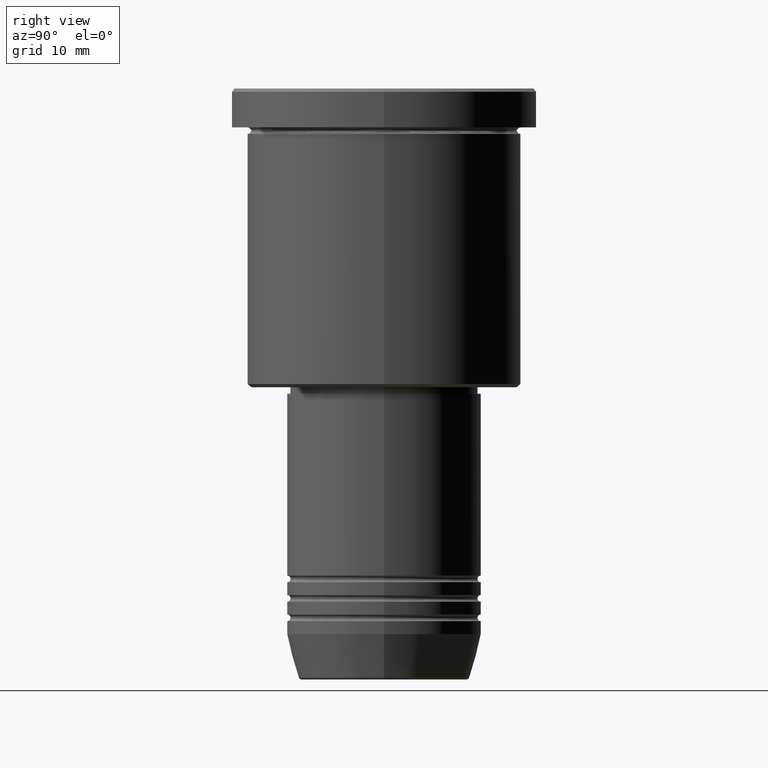
[diagram: clean part render]
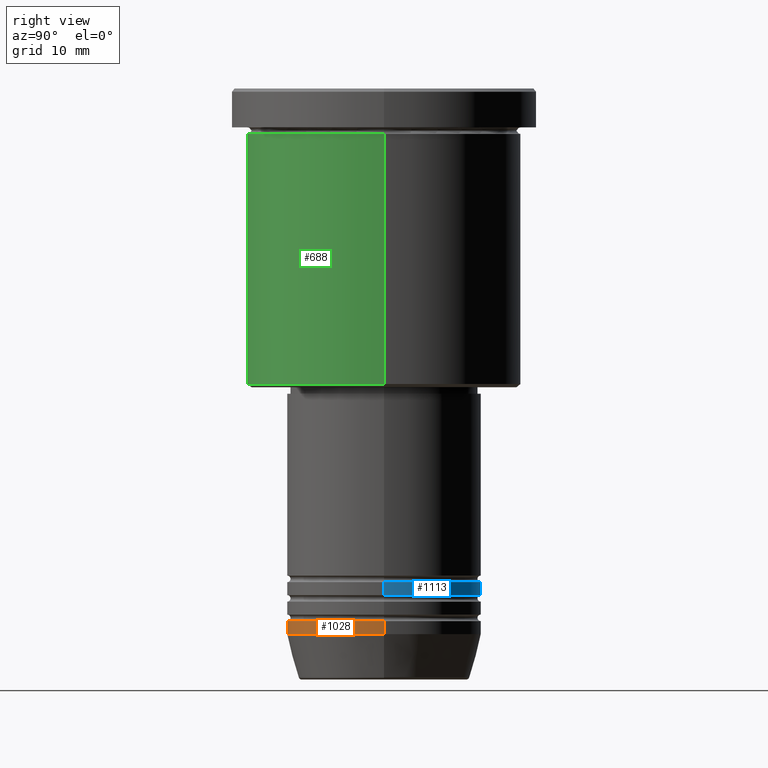
[diagram: same view with three faces highlighted in distinct colors, each labeled with its STEP entity id]
A machine part, right view with three faces highlighted in distinct colors.
Their STEP definitions:

[orange] entity #1028 — the highlighted cylindrical surface (partial cylindrical patch) has radius 15 mm, axis along (-0, -0, 1).
#8 = CARTESIAN_POINT ( 'NONE',  ( 0.000000000000000000, 0.000000000000000000, -83.99999999999998579 ) ) ;
#55 = CARTESIAN_POINT ( 'NONE',  ( -15.00000000000000000, 1.836970198721029589E-15, -83.99999999999998579 ) ) ;
#61 = EDGE_CURVE ( 'NONE', #430, #1041, #633, .T. ) ;
#105 = CARTESIAN_POINT ( 'NONE',  ( 0.000000000000000000, 0.000000000000000000, -81.99999999999998579 ) ) ;
#139 = FACE_OUTER_BOUND ( 'NONE', #650, .T. ) ;
#144 = CARTESIAN_POINT ( 'NONE',  ( 15.00000000000000000, 0.000000000000000000, -83.99999999999998579 ) ) ;
#178 = DIRECTION ( 'NONE',  ( -0.000000000000000000, -0.000000000000000000, 1.000000000000000000 ) ) ;
#224 = AXIS2_PLACEMENT_3D ( 'NONE', #105, #847, #1097 ) ;
#234 = DIRECTION ( 'NONE',  ( 1.000000000000000000, 0.000000000000000000, 0.000000000000000000 ) ) ;
#254 = VERTEX_POINT ( 'NONE', #518 ) ;
#293 = ORIENTED_EDGE ( 'NONE', *, *, #955, .F. ) ;
#370 = VERTEX_POINT ( 'NONE', #144 ) ;
#412 = DIRECTION ( 'NONE',  ( -0.000000000000000000, -0.000000000000000000, 1.000000000000000000 ) ) ;
#430 = VERTEX_POINT ( 'NONE', #55 ) ;
#453 = CIRCLE ( 'NONE', #1094, 15.00000000000000000 ) ;
#480 = EDGE_CURVE ( 'NONE', #430, #370, #453, .T. ) ;
#504 = EDGE_CURVE ( 'NONE', #370, #254, #759, .T. ) ;
#518 = CARTESIAN_POINT ( 'NONE',  ( 15.00000000000000000, 0.000000000000000000, -81.99999999999998579 ) ) ;
#548 = CARTESIAN_POINT ( 'NONE',  ( -15.00000000000000000, 1.836970198721029589E-15, 0.000000000000000000 ) ) ;
#550 = ORIENTED_EDGE ( 'NONE', *, *, #504, .T. ) ;
#572 = DIRECTION ( 'NONE',  ( 1.000000000000000000, 0.000000000000000000, 0.000000000000000000 ) ) ;
#601 = VECTOR ( 'NONE', #1168, 1000.000000000000000 ) ;
#633 = LINE ( 'NONE', #548, #601 ) ;
#645 = CARTESIAN_POINT ( 'NONE',  ( -15.00000000000000000, 1.836970198721029589E-15, -81.99999999999998579 ) ) ;
#650 = EDGE_LOOP ( 'NONE', ( #1172, #719, #550, #293 ) ) ;
#651 = CARTESIAN_POINT ( 'NONE',  ( 15.00000000000000000, 0.000000000000000000, 0.000000000000000000 ) ) ;
#719 = ORIENTED_EDGE ( 'NONE', *, *, #480, .T. ) ;
#759 = LINE ( 'NONE', #651, #926 ) ;
#847 = DIRECTION ( 'NONE',  ( -0.000000000000000000, -0.000000000000000000, 1.000000000000000000 ) ) ;
#903 = AXIS2_PLACEMENT_3D ( 'NONE', #1135, #412, #234 ) ;
#926 = VECTOR ( 'NONE', #178, 1000.000000000000000 ) ;
#955 = EDGE_CURVE ( 'NONE', #1041, #254, #1056, .T. ) ;
#1006 = DIRECTION ( 'NONE',  ( -0.000000000000000000, -0.000000000000000000, 1.000000000000000000 ) ) ;
#1025 = CYLINDRICAL_SURFACE ( 'NONE', #903, 15.00000000000000000 ) ;
#1028 = ADVANCED_FACE ( 'NONE', ( #139 ), #1025, .T. ) ;
#1041 = VERTEX_POINT ( 'NONE', #645 ) ;
#1056 = CIRCLE ( 'NONE', #224, 15.00000000000000000 ) ;
#1094 = AXIS2_PLACEMENT_3D ( 'NONE', #8, #1006, #572 ) ;
#1097 = DIRECTION ( 'NONE',  ( 1.000000000000000000, 0.000000000000000000, 0.000000000000000000 ) ) ;
#1135 = CARTESIAN_POINT ( 'NONE',  ( 0.000000000000000000, 0.000000000000000000, 0.000000000000000000 ) ) ;
#1168 = DIRECTION ( 'NONE',  ( -0.000000000000000000, -0.000000000000000000, 1.000000000000000000 ) ) ;
#1172 = ORIENTED_EDGE ( 'NONE', *, *, #61, .F. ) ;

[blue] entity #1113 — the highlighted cylindrical surface (partial cylindrical patch) has radius 15 mm, axis along (-0, -0, 1).
#13 = EDGE_CURVE ( 'NONE', #57, #157, #1122, .T. ) ;
#29 = AXIS2_PLACEMENT_3D ( 'NONE', #167, #552, #265 ) ;
#42 = EDGE_CURVE ( 'NONE', #728, #320, #326, .T. ) ;
#57 = VERTEX_POINT ( 'NONE', #438 ) ;
#108 = ORIENTED_EDGE ( 'NONE', *, *, #1019, .F. ) ;
#157 = VERTEX_POINT ( 'NONE', #656 ) ;
#163 = CYLINDRICAL_SURFACE ( 'NONE', #814, 15.00000000000000000 ) ;
#167 = CARTESIAN_POINT ( 'NONE',  ( 0.000000000000000000, 0.000000000000000000, -77.99999999999997158 ) ) ;
#239 = CIRCLE ( 'NONE', #29, 15.00000000000000000 ) ;
#265 = DIRECTION ( 'NONE',  ( 1.000000000000000000, 0.000000000000000000, 0.000000000000000000 ) ) ;
#294 = ORIENTED_EDGE ( 'NONE', *, *, #749, .T. ) ;
#320 = VERTEX_POINT ( 'NONE', #1059 ) ;
#326 = LINE ( 'NONE', #611, #642 ) ;
#381 = VECTOR ( 'NONE', #965, 1000.000000000000000 ) ;
#438 = CARTESIAN_POINT ( 'NONE',  ( 15.00000000000000000, 0.000000000000000000, -77.99999999999997158 ) ) ;
#455 = DIRECTION ( 'NONE',  ( -0.000000000000000000, -0.000000000000000000, 1.000000000000000000 ) ) ;
#460 = FACE_OUTER_BOUND ( 'NONE', #798, .T. ) ;
#519 = DIRECTION ( 'NONE',  ( -0.000000000000000000, -0.000000000000000000, 1.000000000000000000 ) ) ;
#549 = CARTESIAN_POINT ( 'NONE',  ( 0.000000000000000000, 0.000000000000000000, 0.000000000000000000 ) ) ;
#552 = DIRECTION ( 'NONE',  ( -0.000000000000000000, -0.000000000000000000, 1.000000000000000000 ) ) ;
#561 = ORIENTED_EDGE ( 'NONE', *, *, #13, .F. ) ;
#597 = DIRECTION ( 'NONE',  ( 1.000000000000000000, 0.000000000000000000, 0.000000000000000000 ) ) ;
#611 = CARTESIAN_POINT ( 'NONE',  ( -15.00000000000000000, 1.836970198721029589E-15, 0.000000000000000000 ) ) ;
#642 = VECTOR ( 'NONE', #519, 1000.000000000000000 ) ;
#656 = CARTESIAN_POINT ( 'NONE',  ( 15.00000000000000000, 0.000000000000000000, -75.99999999999997158 ) ) ;
#728 = VERTEX_POINT ( 'NONE', #999 ) ;
#749 = EDGE_CURVE ( 'NONE', #57, #728, #239, .T. ) ;
#798 = EDGE_LOOP ( 'NONE', ( #294, #1060, #108, #561 ) ) ;
#814 = AXIS2_PLACEMENT_3D ( 'NONE', #549, #455, #824 ) ;
#824 = DIRECTION ( 'NONE',  ( 1.000000000000000000, 0.000000000000000000, 0.000000000000000000 ) ) ;
#877 = DIRECTION ( 'NONE',  ( -0.000000000000000000, -0.000000000000000000, 1.000000000000000000 ) ) ;
#961 = CARTESIAN_POINT ( 'NONE',  ( 15.00000000000000000, 0.000000000000000000, 0.000000000000000000 ) ) ;
#964 = CARTESIAN_POINT ( 'NONE',  ( 0.000000000000000000, 0.000000000000000000, -75.99999999999997158 ) ) ;
#965 = DIRECTION ( 'NONE',  ( -0.000000000000000000, -0.000000000000000000, 1.000000000000000000 ) ) ;
#999 = CARTESIAN_POINT ( 'NONE',  ( -15.00000000000000000, 1.836970198721029589E-15, -77.99999999999997158 ) ) ;
#1019 = EDGE_CURVE ( 'NONE', #157, #320, #1109, .T. ) ;
#1059 = CARTESIAN_POINT ( 'NONE',  ( -15.00000000000000000, 1.836970198721029589E-15, -75.99999999999997158 ) ) ;
#1060 = ORIENTED_EDGE ( 'NONE', *, *, #42, .T. ) ;
#1109 = CIRCLE ( 'NONE', #1154, 15.00000000000000000 ) ;
#1113 = ADVANCED_FACE ( 'NONE', ( #460 ), #163, .T. ) ;
#1122 = LINE ( 'NONE', #961, #381 ) ;
#1154 = AXIS2_PLACEMENT_3D ( 'NONE', #964, #877, #597 ) ;

[green] entity #688 — the highlighted cylindrical surface (partial cylindrical patch) has radius 21 mm, axis along (-0, -0, 1).
#124 = CARTESIAN_POINT ( 'NONE',  ( -21.00000000000000000, 2.571758278209441661E-15, -45.49999999999998579 ) ) ;
#131 = AXIS2_PLACEMENT_3D ( 'NONE', #1139, #150, #534 ) ;
#150 = DIRECTION ( 'NONE',  ( -0.000000000000000000, -0.000000000000000000, 1.000000000000000000 ) ) ;
#161 = DIRECTION ( 'NONE',  ( -0.000000000000000000, -0.000000000000000000, 1.000000000000000000 ) ) ;
#192 = DIRECTION ( 'NONE',  ( 1.000000000000000000, 0.000000000000000000, 0.000000000000000000 ) ) ;
#207 = EDGE_LOOP ( 'NONE', ( #782, #487, #1061, #812 ) ) ;
#216 = CARTESIAN_POINT ( 'NONE',  ( 21.00000000000000000, 0.000000000000000000, 0.000000000000000000 ) ) ;
#242 = CARTESIAN_POINT ( 'NONE',  ( 21.00000000000000000, 0.000000000000000000, -45.49999999999998579 ) ) ;
#251 = VERTEX_POINT ( 'NONE', #596 ) ;
#282 = AXIS2_PLACEMENT_3D ( 'NONE', #465, #671, #192 ) ;
#299 = EDGE_CURVE ( 'NONE', #1177, #1026, #1119, .T. ) ;
#311 = LINE ( 'NONE', #692, #1087 ) ;
#384 = EDGE_CURVE ( 'NONE', #526, #1177, #602, .T. ) ;
#407 = AXIS2_PLACEMENT_3D ( 'NONE', #631, #161, #813 ) ;
#416 = DIRECTION ( 'NONE',  ( -0.000000000000000000, -0.000000000000000000, 1.000000000000000000 ) ) ;
#431 = FACE_OUTER_BOUND ( 'NONE', #207, .T. ) ;
#465 = CARTESIAN_POINT ( 'NONE',  ( 0.000000000000000000, 0.000000000000000000, -6.999999999999994671 ) ) ;
#467 = CIRCLE ( 'NONE', #282, 21.00000000000000000 ) ;
#485 = VECTOR ( 'NONE', #786, 1000.000000000000000 ) ;
#487 = ORIENTED_EDGE ( 'NONE', *, *, #384, .T. ) ;
#526 = VERTEX_POINT ( 'NONE', #124 ) ;
#534 = DIRECTION ( 'NONE',  ( 1.000000000000000000, 0.000000000000000000, 0.000000000000000000 ) ) ;
#596 = CARTESIAN_POINT ( 'NONE',  ( -21.00000000000000000, 2.571758278209441661E-15, -6.999999999999994671 ) ) ;
#602 = CIRCLE ( 'NONE', #407, 21.00000000000000000 ) ;
#606 = EDGE_CURVE ( 'NONE', #526, #251, #311, .T. ) ;
#631 = CARTESIAN_POINT ( 'NONE',  ( 0.000000000000000000, 0.000000000000000000, -45.49999999999998579 ) ) ;
#671 = DIRECTION ( 'NONE',  ( -0.000000000000000000, -0.000000000000000000, 1.000000000000000000 ) ) ;
#688 = ADVANCED_FACE ( 'NONE', ( #431 ), #799, .T. ) ;
#692 = CARTESIAN_POINT ( 'NONE',  ( -21.00000000000000000, 2.571758278209441661E-15, 0.000000000000000000 ) ) ;
#707 = CARTESIAN_POINT ( 'NONE',  ( 21.00000000000000000, 0.000000000000000000, -6.999999999999994671 ) ) ;
#782 = ORIENTED_EDGE ( 'NONE', *, *, #606, .F. ) ;
#786 = DIRECTION ( 'NONE',  ( -0.000000000000000000, -0.000000000000000000, 1.000000000000000000 ) ) ;
#799 = CYLINDRICAL_SURFACE ( 'NONE', #131, 21.00000000000000000 ) ;
#812 = ORIENTED_EDGE ( 'NONE', *, *, #948, .F. ) ;
#813 = DIRECTION ( 'NONE',  ( -1.000000000000000000, 0.000000000000000000, 0.000000000000000000 ) ) ;
#948 = EDGE_CURVE ( 'NONE', #251, #1026, #467, .T. ) ;
#1026 = VERTEX_POINT ( 'NONE', #707 ) ;
#1061 = ORIENTED_EDGE ( 'NONE', *, *, #299, .T. ) ;
#1087 = VECTOR ( 'NONE', #416, 1000.000000000000000 ) ;
#1119 = LINE ( 'NONE', #216, #485 ) ;
#1139 = CARTESIAN_POINT ( 'NONE',  ( 0.000000000000000000, 0.000000000000000000, 0.000000000000000000 ) ) ;
#1177 = VERTEX_POINT ( 'NONE', #242 ) ;